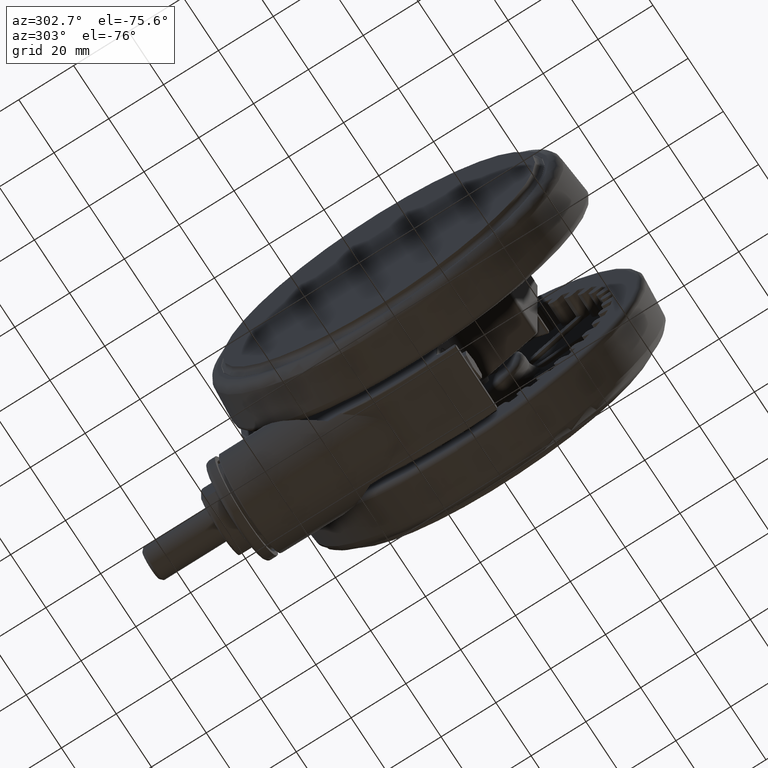
[diagram: clean part render]
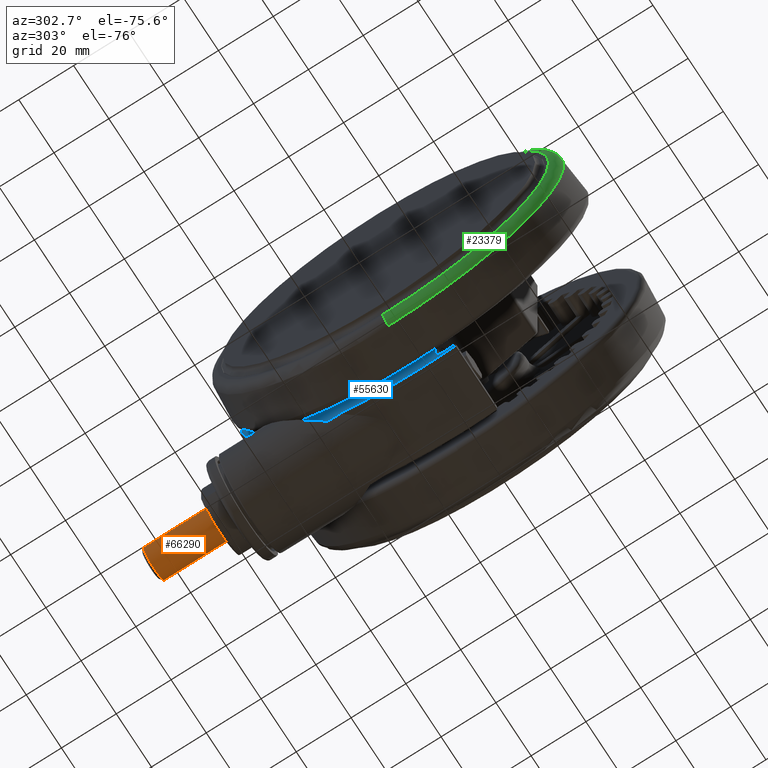
[diagram: same view with three faces highlighted in distinct colors, each labeled with its STEP entity id]
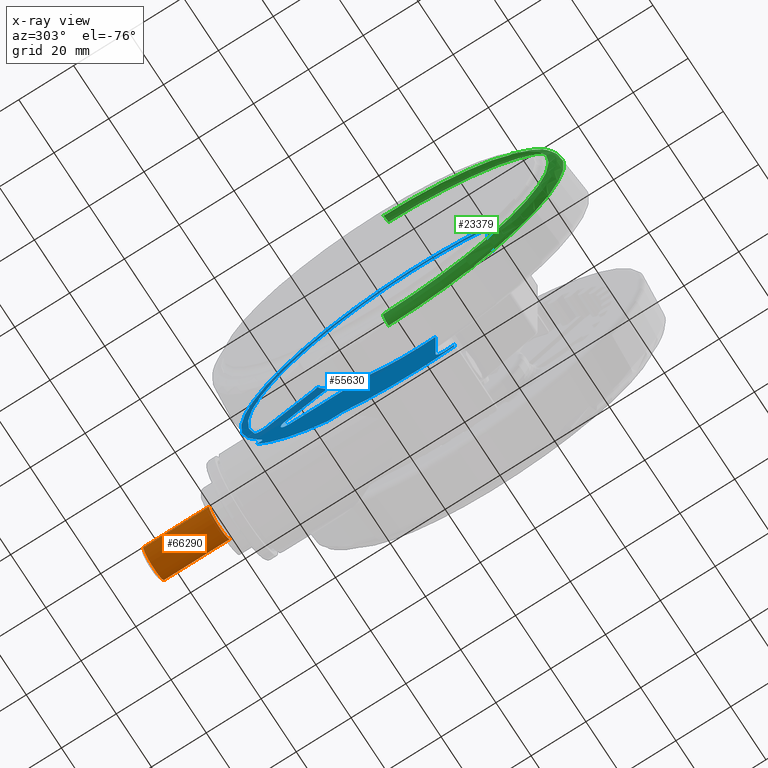
[diagram: x-ray of the same camera — body ghosted, the three highlighted faces saturated]
A machine part, auxiliary view with three faces highlighted in distinct colors.
The next image is the same camera in x-ray (body ghosted, the three faces saturated) — at least one of them is partly hidden behind the body in this view.
Their STEP definitions:

[orange] entity #66290 — the highlighted cylindrical surface (edge-blend (fillet) strip) has radius 6 mm, axis along (0, 1, 0).
#1411 = VERTEX_POINT ( 'NONE', #39515 ) ;
#5140 = EDGE_CURVE ( 'NONE', #1411, #66949, #65470, .T. ) ;
#6776 = DIRECTION ( 'NONE',  ( -0.05055745222233924000, -0.9987211542892170400, 0.0000000000000000000 ) ) ;
#7513 = EDGE_CURVE ( 'NONE', #11951, #13648, #17286, .T. ) ;
#9935 = CIRCLE ( 'NONE', #25752, 5.999999999999998200 ) ;
#10554 = CARTESIAN_POINT ( 'NONE',  ( 48.98704812080191600, 77.62260699313206700, -34.10000000000001600 ) ) ;
#11951 = VERTEX_POINT ( 'NONE', #47339 ) ;
#12126 = FACE_OUTER_BOUND ( 'NONE', #50219, .T. ) ;
#12871 = DIRECTION ( 'NONE',  ( 0.05055745222233924000, 0.9987211542892169300, -0.0000000000000000000 ) ) ;
#13588 = ORIENTED_EDGE ( 'NONE', *, *, #22470, .F. ) ;
#13648 = VERTEX_POINT ( 'NONE', #46284 ) ;
#16232 = DIRECTION ( 'NONE',  ( 0.05055745222233924000, 0.9987211542892170400, -0.0000000000000000000 ) ) ;
#16886 = CARTESIAN_POINT ( 'NONE',  ( 50.20042697413806100, 101.5919146960733000, -28.10000000000001600 ) ) ;
#17286 = LINE ( 'NONE', #29681, #30573 ) ;
#22470 = EDGE_CURVE ( 'NONE', #11951, #1411, #56983, .T. ) ;
#25752 = AXIS2_PLACEMENT_3D ( 'NONE', #40743, #6776, #46432 ) ;
#26553 = DIRECTION ( 'NONE',  ( -0.05055745222233924000, -0.9987211542892170400, 0.0000000000000000000 ) ) ;
#29681 = CARTESIAN_POINT ( 'NONE',  ( 48.98704812080191600, 77.62260699313206700, -40.10000000000000900 ) ) ;
#30573 = VECTOR ( 'NONE', #12871, 1000.000000000000100 ) ;
#30588 = CARTESIAN_POINT ( 'NONE',  ( 48.98704812080191600, 77.62260699313206700, -28.10000000000001600 ) ) ;
#34851 = ORIENTED_EDGE ( 'NONE', *, *, #7513, .T. ) ;
#35085 = AXIS2_PLACEMENT_3D ( 'NONE', #60536, #26553, #66233 ) ;
#38893 = VECTOR ( 'NONE', #70261, 1000.000000000000100 ) ;
#39515 = CARTESIAN_POINT ( 'NONE',  ( 48.98704812080191600, 77.62260699313206700, -28.10000000000001600 ) ) ;
#40743 = CARTESIAN_POINT ( 'NONE',  ( 50.20042697413806100, 101.5919146960733000, -34.10000000000001600 ) ) ;
#43579 = AXIS2_PLACEMENT_3D ( 'NONE', #10554, #16232, #55914 ) ;
#46284 = CARTESIAN_POINT ( 'NONE',  ( 50.20042697413806100, 101.5919146960733000, -40.10000000000000900 ) ) ;
#46432 = DIRECTION ( 'NONE',  ( 0.0000000000000000000, 0.0000000000000000000, -1.000000000000000000 ) ) ;
#47339 = CARTESIAN_POINT ( 'NONE',  ( 48.98704812080191600, 77.62260699313206700, -40.10000000000000900 ) ) ;
#50219 = EDGE_LOOP ( 'NONE', ( #13588, #34851, #56221, #57722 ) ) ;
#55576 = CYLINDRICAL_SURFACE ( 'NONE', #43579, 5.999999999999998200 ) ;
#55914 = DIRECTION ( 'NONE',  ( 0.0000000000000000000, 0.0000000000000000000, 1.000000000000000000 ) ) ;
#56221 = ORIENTED_EDGE ( 'NONE', *, *, #69925, .T. ) ;
#56983 = CIRCLE ( 'NONE', #35085, 5.999999999999998200 ) ;
#57722 = ORIENTED_EDGE ( 'NONE', *, *, #5140, .F. ) ;
#60536 = CARTESIAN_POINT ( 'NONE',  ( 48.98704812080191600, 77.62260699313206700, -34.10000000000001600 ) ) ;
#65470 = LINE ( 'NONE', #30588, #38893 ) ;
#66233 = DIRECTION ( 'NONE',  ( 0.0000000000000000000, 0.0000000000000000000, -1.000000000000000000 ) ) ;
#66290 = ADVANCED_FACE ( 'NONE', ( #12126 ), #55576, .T. ) ;
#66949 = VERTEX_POINT ( 'NONE', #16886 ) ;
#69925 = EDGE_CURVE ( 'NONE', #13648, #66949, #9935, .T. ) ;
#70261 = DIRECTION ( 'NONE',  ( 0.05055745222233924000, 0.9987211542892169300, -0.0000000000000000000 ) ) ;

[blue] entity #55630 — the highlighted planar face has unit normal (1, 0, 0).
#347 = CARTESIAN_POINT ( 'NONE',  ( 33.51595094455828400, 55.29808019779855500, -46.09999999999998700 ) ) ;
#589 = CARTESIAN_POINT ( 'NONE',  ( 34.65925647378355700, 55.49810765025986800, -46.10000000000000100 ) ) ;
#643 = DIRECTION ( 'NONE',  ( 0.0000000000000000000, 0.0000000000000000000, 1.000000000000000000 ) ) ;
#836 = CARTESIAN_POINT ( 'NONE',  ( 60.31797485852848000, -16.37045842259561800, -46.10000000000001600 ) ) ;
#1041 = DIRECTION ( 'NONE',  ( -0.0000000000000000000, -0.0000000000000000000, -1.000000000000000000 ) ) ;
#1085 = CARTESIAN_POINT ( 'NONE',  ( 30.64758720681064100, 56.75362412571225700, -46.10000000000001600 ) ) ;
#1138 = CARTESIAN_POINT ( 'NONE',  ( 0.0000000000000000000, 0.0000000000000000000, -46.10000000000001600 ) ) ;
#1403 = CARTESIAN_POINT ( 'NONE',  ( 37.45204328584563300, -1.895904458337730900, -46.10000000000001600 ) ) ;
#1537 = ORIENTED_EDGE ( 'NONE', *, *, #31021, .F. ) ;
#1570 = DIRECTION ( 'NONE',  ( -0.9987211542892169300, 0.05055745222233937200, -0.0000000000000000000 ) ) ;
#2556 = DIRECTION ( 'NONE',  ( 0.0000000000000000000, 0.0000000000000000000, 1.000000000000000000 ) ) ;
#3178 = DIRECTION ( 'NONE',  ( -0.0000000000000000000, -0.0000000000000000000, -1.000000000000000000 ) ) ;
#3325 = AXIS2_PLACEMENT_3D ( 'NONE', #72880, #38936, #5013 ) ;
#3606 = CARTESIAN_POINT ( 'NONE',  ( 29.94533332071498700, 22.57270502866851200, -46.10000000000001600 ) ) ;
#3657 = AXIS2_PLACEMENT_3D ( 'NONE', #25933, #65591, #31638 ) ;
#3766 = DIRECTION ( 'NONE',  ( 0.05055745222233949700, 0.9987211542892169300, 0.0000000000000000000 ) ) ;
#4125 = CARTESIAN_POINT ( 'NONE',  ( 34.66436689370962700, 55.59908045342798700, -46.10000000000001600 ) ) ;
#4260 = EDGE_CURVE ( 'NONE', #41887, #12539, #50604, .T. ) ;
#4665 = CIRCLE ( 'NONE', #65420, 3.499999999999997800 ) ;
#4832 = EDGE_LOOP ( 'NONE', ( #10673, #38430, #43316, #12071, #6911, #33844, #32757, #31905, #64059, #39299, #1537, #27477, #63760, #38965, #6835, #43246, #28815, #63596, #65700, #61091, #46194, #7256, #10871, #44860, #23507, #50428, #38896, #12722, #13035, #28745, #36929, #52384 ) ) ;
#4910 = DIRECTION ( 'NONE',  ( 0.9987211542892169300, -0.05055745222233949700, 0.0000000000000000000 ) ) ;
#5013 = DIRECTION ( 'NONE',  ( 0.9987211542892169300, -0.05055745222233949000, 0.0000000000000000000 ) ) ;
#5377 = EDGE_CURVE ( 'NONE', #61057, #23327, #51307, .T. ) ;
#5521 = DIRECTION ( 'NONE',  ( 0.0000000000000000000, 0.0000000000000000000, 1.000000000000000000 ) ) ;
#5614 = EDGE_CURVE ( 'NONE', #27569, #64696, #37062, .T. ) ;
#5704 = DIRECTION ( 'NONE',  ( -0.9987211542892169300, 0.05055745222233949700, 0.0000000000000000000 ) ) ;
#5719 = EDGE_CURVE ( 'NONE', #69908, #31098, #73390, .T. ) ;
#6004 = CARTESIAN_POINT ( 'NONE',  ( 33.97804829239861800, 55.10111271422160000, -46.10000000000008700 ) ) ;
#6789 = DIRECTION ( 'NONE',  ( 0.9987211542892169300, -0.05055745222233949700, 0.0000000000000000000 ) ) ;
#6815 = DIRECTION ( 'NONE',  ( -0.5135107618322831700, -0.8580831530116577200, 0.0000000000000000000 ) ) ;
#6835 = ORIENTED_EDGE ( 'NONE', *, *, #9533, .T. ) ;
#6911 = ORIENTED_EDGE ( 'NONE', *, *, #46186, .T. ) ;
#7256 = ORIENTED_EDGE ( 'NONE', *, *, #56741, .T. ) ;
#7736 = VERTEX_POINT ( 'NONE', #20967 ) ;
#8839 = CARTESIAN_POINT ( 'NONE',  ( 0.0000000000000000000, 0.0000000000000000000, -46.10000000000001600 ) ) ;
#8988 = EDGE_CURVE ( 'NONE', #12539, #30166, #44682, .T. ) ;
#9115 = CARTESIAN_POINT ( 'NONE',  ( 59.72421825664727600, 24.35708836524514400, -46.10000000000001600 ) ) ;
#9350 = CARTESIAN_POINT ( 'NONE',  ( 35.54201480121026400, -8.307537774247636600, -46.10000000000001600 ) ) ;
#9533 = EDGE_CURVE ( 'NONE', #7736, #42382, #25943, .T. ) ;
#9575 = AXIS2_PLACEMENT_3D ( 'NONE', #45835, #11900, #51571 ) ;
#9717 = CIRCLE ( 'NONE', #27236, 64.50000000000000000 ) ;
#9877 = CARTESIAN_POINT ( 'NONE',  ( 36.55651638203040200, -8.358894066223154300, -46.10000000000001600 ) ) ;
#10416 = AXIS2_PLACEMENT_3D ( 'NONE', #72781, #38837, #4910 ) ;
#10673 = ORIENTED_EDGE ( 'NONE', *, *, #30717, .T. ) ;
#10871 = ORIENTED_EDGE ( 'NONE', *, *, #44620, .T. ) ;
#11556 = CARTESIAN_POINT ( 'NONE',  ( -34.16714021686056700, -20.79919540274063300, -46.10000000000001600 ) ) ;
#11720 = CARTESIAN_POINT ( 'NONE',  ( 34.21939798588539400, 55.02952015150120200, -46.10000000000003000 ) ) ;
#11847 = EDGE_CURVE ( 'NONE', #43187, #27569, #28059, .T. ) ;
#11900 = DIRECTION ( 'NONE',  ( 0.0000000000000000000, 0.0000000000000000000, 1.000000000000000000 ) ) ;
#12071 = ORIENTED_EDGE ( 'NONE', *, *, #54898, .T. ) ;
#12276 = CARTESIAN_POINT ( 'NONE',  ( -7.916026514659930200, 4.737262107944387100, -46.10000000000001600 ) ) ;
#12389 = CARTESIAN_POINT ( 'NONE',  ( 0.0000000000000000000, 0.0000000000000000000, -46.10000000000001600 ) ) ;
#12539 = VERTEX_POINT ( 'NONE', #61066 ) ;
#12722 = ORIENTED_EDGE ( 'NONE', *, *, #11847, .T. ) ;
#13035 = ORIENTED_EDGE ( 'NONE', *, *, #5614, .T. ) ;
#13252 = CARTESIAN_POINT ( 'NONE',  ( 61.06195632612809700, -13.10389479921933800, -46.10000000000001600 ) ) ;
#13402 = DIRECTION ( 'NONE',  ( 0.0000000000000000000, 0.0000000000000000000, 1.000000000000000000 ) ) ;
#13952 = VERTEX_POINT ( 'NONE', #4125 ) ;
#14334 = EDGE_CURVE ( 'NONE', #26333, #15521, #30513, .T. ) ;
#14515 = DIRECTION ( 'NONE',  ( 0.9987211542892169300, -0.05055745222233949000, 0.0000000000000000000 ) ) ;
#15044 = VERTEX_POINT ( 'NONE', #23946 ) ;
#15122 = CARTESIAN_POINT ( 'NONE',  ( 10.05629528079595800, 36.12645741316798400, -46.10000000000001600 ) ) ;
#15211 = CIRCLE ( 'NONE', #43667, 2.999999999999999600 ) ;
#15226 = AXIS2_PLACEMENT_3D ( 'NONE', #63549, #29574, #69255 ) ;
#15430 = VERTEX_POINT ( 'NONE', #39775 ) ;
#15432 = VERTEX_POINT ( 'NONE', #34059 ) ;
#15488 = EDGE_CURVE ( 'NONE', #53626, #19756, #21498, .T. ) ;
#15521 = VERTEX_POINT ( 'NONE', #1403 ) ;
#15866 = CIRCLE ( 'NONE', #69336, 3.499999999999997800 ) ;
#16410 = DIRECTION ( 'NONE',  ( 0.0000000000000000000, 0.0000000000000000000, 1.000000000000000000 ) ) ;
#16578 = LINE ( 'NONE', #9350, #46756 ) ;
#16586 = VERTEX_POINT ( 'NONE', #21681 ) ;
#16675 = CIRCLE ( 'NONE', #22309, 0.4999999999999987800 ) ;
#16743 = EDGE_CURVE ( 'NONE', #25891, #15430, #25736, .T. ) ;
#16800 = EDGE_CURVE ( 'NONE', #64696, #69908, #63899, .T. ) ;
#16894 = VECTOR ( 'NONE', #22919, 1000.000000000000100 ) ;
#17247 = DIRECTION ( 'NONE',  ( 0.9987211542892170400, -0.05055745222233913600, 0.0000000000000000000 ) ) ;
#17393 = CARTESIAN_POINT ( 'NONE',  ( 34.37017640953696000, 55.01755876338918200, -46.10000000000008700 ) ) ;
#17989 = CARTESIAN_POINT ( 'NONE',  ( -55.60906158615221500, -19.71375838107803000, -46.10000000000001600 ) ) ;
#18068 = DIRECTION ( 'NONE',  ( 0.9987211542892170400, -0.05055745222233950400, 0.0000000000000000000 ) ) ;
#19175 = CIRCLE ( 'NONE', #70868, 37.50000000000000000 ) ;
#19631 = CARTESIAN_POINT ( 'NONE',  ( 64.41751445165449800, -3.260955668340897800, -46.10000000000001600 ) ) ;
#19756 = VERTEX_POINT ( 'NONE', #44641 ) ;
#19820 = CARTESIAN_POINT ( 'NONE',  ( 19.14932057580867300, 55.80594521630206400, -46.10000000000001600 ) ) ;
#20003 = DIRECTION ( 'NONE',  ( 0.0000000000000000000, 0.0000000000000000000, 1.000000000000000000 ) ) ;
#20414 = AXIS2_PLACEMENT_3D ( 'NONE', #61520, #27546, #67226 ) ;
#20967 = CARTESIAN_POINT ( 'NONE',  ( -58.43664098883801500, -20.71615287503112800, -46.10000000000001600 ) ) ;
#21076 = AXIS2_PLACEMENT_3D ( 'NONE', #53985, #20003, #59676 ) ;
#21479 = B_SPLINE_CURVE_WITH_KNOTS ( 'NONE', 3,
 ( #22848, #51147, #28525, #68207, #34231, #347, #39946, #6004, #45656, #11720, #51387, #17393, #57080, #23087, #62733, #28767, #68448, #34488, #589, #40202 ),
 .UNSPECIFIED., .F., .F.,
 ( 4, 2, 2, 2, 2, 2, 2, 2, 2, 4 ),
 ( 0.0000000000000000000, 0.002412417624455725900, 0.003015522030569659300, 0.003618626436683592700, 0.003920178639740563300, 0.004070954741269051200, 0.004221730842797539200, 0.004372506944326027100, 0.004523283045854514100, 0.004824835248911489900 ),
 .UNSPECIFIED. ) ;
#21498 = CIRCLE ( 'NONE', #15226, 67.00000000000000000 ) ;
#21594 = AXIS2_PLACEMENT_3D ( 'NONE', #12389, #52055, #18068 ) ;
#21681 = CARTESIAN_POINT ( 'NONE',  ( -61.92071156593144800, 3.134562037785048700, -46.10000000000001600 ) ) ;
#22309 = AXIS2_PLACEMENT_3D ( 'NONE', #37094, #3178, #42801 ) ;
#22848 = CARTESIAN_POINT ( 'NONE',  ( 30.64758720681064100, 56.75362412571225700, -46.10000000000001600 ) ) ;
#22919 = DIRECTION ( 'NONE',  ( 0.05055745222233949700, 0.9987211542892169300, -0.0000000000000000000 ) ) ;
#22947 = EDGE_CURVE ( 'NONE', #29278, #28611, #15211, .T. ) ;
#23087 = CARTESIAN_POINT ( 'NONE',  ( 34.51033384425105100, 55.07438368592178800, -46.09999999999999400 ) ) ;
#23146 = CARTESIAN_POINT ( 'NONE',  ( 20.68452808497702800, 34.02906120299686400, -46.10000000000001600 ) ) ;
#23327 = VERTEX_POINT ( 'NONE', #46054 ) ;
#23412 = CARTESIAN_POINT ( 'NONE',  ( 0.0000000000000000000, 0.0000000000000000000, -46.10000000000001600 ) ) ;
#23507 = ORIENTED_EDGE ( 'NONE', *, *, #15488, .F. ) ;
#23689 = DIRECTION ( 'NONE',  ( 0.9987211542892170400, -0.05055745222233913600, 0.0000000000000000000 ) ) ;
#23926 = EDGE_CURVE ( 'NONE', #15430, #41887, #48815, .T. ) ;
#23946 = CARTESIAN_POINT ( 'NONE',  ( 11.64154443834423500, 37.41821720365116000, -46.10000000000001600 ) ) ;
#24088 = CARTESIAN_POINT ( 'NONE',  ( -0.6724141145571136400, -13.28299135204658500, -46.10000000000001600 ) ) ;
#24319 = CIRCLE ( 'NONE', #27036, 62.00000000000000700 ) ;
#25504 = DIRECTION ( 'NONE',  ( 0.9987211542892168200, -0.05055745222234028800, 0.0000000000000000000 ) ) ;
#25728 = CIRCLE ( 'NONE', #21076, 3.000000000000001300 ) ;
#25736 = CIRCLE ( 'NONE', #46175, 3.499999999999997800 ) ;
#25891 = VERTEX_POINT ( 'NONE', #56297 ) ;
#25933 = CARTESIAN_POINT ( 'NONE',  ( 0.0000000000000000000, 0.0000000000000000000, -46.10000000000001600 ) ) ;
#25943 = CIRCLE ( 'NONE', #67543, 2.999999999999999100 ) ;
#25947 = AXIS2_PLACEMENT_3D ( 'NONE', #65321, #31359, #71055 ) ;
#26238 = CARTESIAN_POINT ( 'NONE',  ( 34.75579020374034700, 57.40496684886175400, -46.10000000000001600 ) ) ;
#26333 = VERTEX_POINT ( 'NONE', #9877 ) ;
#26982 = CARTESIAN_POINT ( 'NONE',  ( -59.56876827585880800, -24.73483062600266500, -46.10000000000001600 ) ) ;
#27036 = AXIS2_PLACEMENT_3D ( 'NONE', #23412, #63053, #29088 ) ;
#27236 = AXIS2_PLACEMENT_3D ( 'NONE', #34951, #1041, #40655 ) ;
#27477 = ORIENTED_EDGE ( 'NONE', *, *, #22947, .T. ) ;
#27546 = DIRECTION ( 'NONE',  ( 0.0000000000000000000, 0.0000000000000000000, 1.000000000000000000 ) ) ;
#27569 = VERTEX_POINT ( 'NONE', #68893 ) ;
#28059 = CIRCLE ( 'NONE', #21594, 64.50000000000000000 ) ;
#28135 = AXIS2_PLACEMENT_3D ( 'NONE', #36478, #2556, #42162 ) ;
#28513 = CARTESIAN_POINT ( 'NONE',  ( -26.32864730004372300, -26.70303973988544000, -46.10000000000001600 ) ) ;
#28525 = CARTESIAN_POINT ( 'NONE',  ( 32.07151558788977000, 56.00572191963140500, -46.10000000000001600 ) ) ;
#28611 = VERTEX_POINT ( 'NONE', #69984 ) ;
#28745 = ORIENTED_EDGE ( 'NONE', *, *, #16800, .T. ) ;
#28767 = CARTESIAN_POINT ( 'NONE',  ( 34.59403324387595500, 55.20241214907555600, -46.09999999999995200 ) ) ;
#28815 = ORIENTED_EDGE ( 'NONE', *, *, #48224, .T. ) ;
#29088 = DIRECTION ( 'NONE',  ( 0.9987211542892171500, -0.05055745222233594400, 0.0000000000000000000 ) ) ;
#29278 = VERTEX_POINT ( 'NONE', #39063 ) ;
#29574 = DIRECTION ( 'NONE',  ( 0.0000000000000000000, 0.0000000000000000000, 1.000000000000000000 ) ) ;
#29656 = VERTEX_POINT ( 'NONE', #3606 ) ;
#30160 = EDGE_CURVE ( 'NONE', #13952, #19756, #46826, .T. ) ;
#30166 = VERTEX_POINT ( 'NONE', #15122 ) ;
#30513 = CIRCLE ( 'NONE', #3325, 37.50000000000000000 ) ;
#30704 = VERTEX_POINT ( 'NONE', #9115 ) ;
#30717 = EDGE_CURVE ( 'NONE', #38954, #26333, #16578, .T. ) ;
#31021 = EDGE_CURVE ( 'NONE', #29278, #15044, #57354, .T. ) ;
#31098 = VERTEX_POINT ( 'NONE', #13252 ) ;
#31359 = DIRECTION ( 'NONE',  ( -0.0000000000000000000, -0.0000000000000000000, -1.000000000000000000 ) ) ;
#31398 = CIRCLE ( 'NONE', #58895, 64.50000000000000000 ) ;
#31549 = VERTEX_POINT ( 'NONE', #26982 ) ;
#31638 = DIRECTION ( 'NONE',  ( 0.9987211542892169300, -0.05055745222233949000, 0.0000000000000000000 ) ) ;
#31836 = CIRCLE ( 'NONE', #58680, 2.999999999999999100 ) ;
#31905 = ORIENTED_EDGE ( 'NONE', *, *, #4260, .T. ) ;
#32552 = CARTESIAN_POINT ( 'NONE',  ( 0.0000000000000000000, 0.0000000000000000000, -46.10000000000001600 ) ) ;
#32757 = ORIENTED_EDGE ( 'NONE', *, *, #23926, .T. ) ;
#33844 = ORIENTED_EDGE ( 'NONE', *, *, #16743, .T. ) ;
#34059 = CARTESIAN_POINT ( 'NONE',  ( -34.31881257352758800, -23.79535886560828200, -46.10000000000001600 ) ) ;
#34231 = CARTESIAN_POINT ( 'NONE',  ( 33.15272065478809100, 55.47074417556912400, -46.09999999999998700 ) ) ;
#34488 = CARTESIAN_POINT ( 'NONE',  ( 34.64884455095445800, 55.39677608982368900, -46.10000000000006500 ) ) ;
#34530 = CARTESIAN_POINT ( 'NONE',  ( 31.31386694237263400, 44.97499850161797500, -46.10000000000001600 ) ) ;
#34780 = CARTESIAN_POINT ( 'NONE',  ( 60.98139013359731600, -13.69379630978934300, -46.10000000000001600 ) ) ;
#34901 = CARTESIAN_POINT ( 'NONE',  ( 34.80939098238488300, 44.79804741883958700, -46.10000000000001600 ) ) ;
#34951 = CARTESIAN_POINT ( 'NONE',  ( 0.0000000000000000000, 0.0000000000000000000, -46.10000000000001600 ) ) ;
#36018 = AXIS2_PLACEMENT_3D ( 'NONE', #11556, #51229, #17247 ) ;
#36205 = VECTOR ( 'NONE', #38485, 1000.000000000000100 ) ;
#36478 = CARTESIAN_POINT ( 'NONE',  ( 57.56643228611584100, -12.92694371644115000, -46.10000000000001600 ) ) ;
#36929 = ORIENTED_EDGE ( 'NONE', *, *, #5719, .T. ) ;
#37062 = LINE ( 'NONE', #24088, #63655 ) ;
#37094 = CARTESIAN_POINT ( 'NONE',  ( -59.10699487837147400, -24.54308775293288000, -46.10000000000001600 ) ) ;
#38284 = DIRECTION ( 'NONE',  ( 0.9987211542892170400, -0.05055745222233772700, 0.0000000000000000000 ) ) ;
#38430 = ORIENTED_EDGE ( 'NONE', *, *, #14334, .T. ) ;
#38485 = DIRECTION ( 'NONE',  ( -0.9987211542892169300, 0.05055745222233942700, -0.0000000000000000000 ) ) ;
#38837 = DIRECTION ( 'NONE',  ( 0.0000000000000000000, 0.0000000000000000000, 1.000000000000000000 ) ) ;
#38896 = ORIENTED_EDGE ( 'NONE', *, *, #60400, .T. ) ;
#38936 = DIRECTION ( 'NONE',  ( 0.0000000000000000000, 0.0000000000000000000, 1.000000000000000000 ) ) ;
#38954 = VERTEX_POINT ( 'NONE', #71832 ) ;
#38965 = ORIENTED_EDGE ( 'NONE', *, *, #60520, .F. ) ;
#39063 = CARTESIAN_POINT ( 'NONE',  ( 21.72357003484367200, 54.26541293080527600, -46.10000000000001600 ) ) ;
#39299 = ORIENTED_EDGE ( 'NONE', *, *, #63782, .T. ) ;
#39444 = CARTESIAN_POINT ( 'NONE',  ( 30.35576898921556900, 26.04855637215578700, -46.10000000000001600 ) ) ;
#39642 = CARTESIAN_POINT ( 'NONE',  ( -1.289215031669657100, -25.46738943437503300, -46.10000000000001600 ) ) ;
#39775 = CARTESIAN_POINT ( 'NONE',  ( 28.31057590683171200, 46.77228616803084500, -46.10000000000001600 ) ) ;
#39835 = CARTESIAN_POINT ( 'NONE',  ( -55.76073394281923600, -22.70992184394568300, -46.10000000000001600 ) ) ;
#39946 = CARTESIAN_POINT ( 'NONE',  ( 33.69809807206886600, 55.21299326556969300, -46.10000000000010100 ) ) ;
#40202 = CARTESIAN_POINT ( 'NONE',  ( 34.66436689370962700, 55.59908045342798700, -46.10000000000001600 ) ) ;
#40250 = DIRECTION ( 'NONE',  ( 0.9987211542892169300, -0.05055745222233964900, 0.0000000000000000000 ) ) ;
#40655 = DIRECTION ( 'NONE',  ( 0.9987211542892170400, -0.05055745222233772700, 0.0000000000000000000 ) ) ;
#40751 = DIRECTION ( 'NONE',  ( 0.0000000000000000000, 0.0000000000000000000, 1.000000000000000000 ) ) ;
#41570 = LINE ( 'NONE', #39642, #69937 ) ;
#41887 = VERTEX_POINT ( 'NONE', #63709 ) ;
#41945 = EDGE_CURVE ( 'NONE', #31098, #38954, #15866, .T. ) ;
#42162 = DIRECTION ( 'NONE',  ( 0.9987211542892169300, -0.05055745222233964900, 0.0000000000000000000 ) ) ;
#42264 = VECTOR ( 'NONE', #6815, 1000.000000000000100 ) ;
#42382 = VERTEX_POINT ( 'NONE', #39835 ) ;
#42801 = DIRECTION ( 'NONE',  ( 0.9987211542892168200, -0.05055745222234271600, 0.0000000000000000000 ) ) ;
#43187 = VERTEX_POINT ( 'NONE', #19631 ) ;
#43246 = ORIENTED_EDGE ( 'NONE', *, *, #65075, .F. ) ;
#43256 = VERTEX_POINT ( 'NONE', #61027 ) ;
#43301 = DIRECTION ( 'NONE',  ( -0.9987211542892169300, 0.05055745222233949700, 0.0000000000000000000 ) ) ;
#43316 = ORIENTED_EDGE ( 'NONE', *, *, #50795, .T. ) ;
#43667 = AXIS2_PLACEMENT_3D ( 'NONE', #19820, #59490, #25504 ) ;
#44620 = EDGE_CURVE ( 'NONE', #62699, #13952, #21479, .T. ) ;
#44641 = CARTESIAN_POINT ( 'NONE',  ( 34.74966831826672100, 57.28403400399144400, -46.10000000000001600 ) ) ;
#44682 = CIRCLE ( 'NONE', #9575, 37.50000000000000000 ) ;
#44860 = ORIENTED_EDGE ( 'NONE', *, *, #30160, .T. ) ;
#45148 = DIRECTION ( 'NONE',  ( 0.9987211542892169300, -0.05055745222233964900, 0.0000000000000000000 ) ) ;
#45656 = CARTESIAN_POINT ( 'NONE',  ( 34.07293361827797900, 55.06576064178454300, -46.10000000000003700 ) ) ;
#45710 = DIRECTION ( 'NONE',  ( -0.5135107618322831700, -0.8580831530116577200, 0.0000000000000000000 ) ) ;
#45835 = CARTESIAN_POINT ( 'NONE',  ( 0.0000000000000000000, 0.0000000000000000000, -46.10000000000001600 ) ) ;
#46054 = CARTESIAN_POINT ( 'NONE',  ( -59.13227360448264800, -25.04244833007749100, -46.10000000000001600 ) ) ;
#46067 = DIRECTION ( 'NONE',  ( 0.05055745222233924000, 0.9987211542892169300, 0.0000000000000000000 ) ) ;
#46127 = CIRCLE ( 'NONE', #36018, 2.999999999999999100 ) ;
#46175 = AXIS2_PLACEMENT_3D ( 'NONE', #34530, #643, #40250 ) ;
#46186 = EDGE_CURVE ( 'NONE', #43256, #25891, #64184, .T. ) ;
#46194 = ORIENTED_EDGE ( 'NONE', *, *, #49556, .T. ) ;
#46756 = VECTOR ( 'NONE', #43301, 1000.000000000000100 ) ;
#46826 = LINE ( 'NONE', #26238, #60098 ) ;
#47033 = VECTOR ( 'NONE', #45710, 1000.000000000000100 ) ;
#47373 = CARTESIAN_POINT ( 'NONE',  ( 57.56643228611584100, -12.92694371644115000, -46.10000000000001600 ) ) ;
#48224 = EDGE_CURVE ( 'NONE', #15432, #56870, #46127, .T. ) ;
#48508 = DIRECTION ( 'NONE',  ( 0.0000000000000000000, 0.0000000000000000000, 1.000000000000000000 ) ) ;
#48815 = LINE ( 'NONE', #23146, #47033 ) ;
#49556 = EDGE_CURVE ( 'NONE', #23327, #31549, #16675, .T. ) ;
#50418 = CARTESIAN_POINT ( 'NONE',  ( -34.16714021686056700, -20.79919540274063300, -46.10000000000001600 ) ) ;
#50428 = ORIENTED_EDGE ( 'NONE', *, *, #70872, .F. ) ;
#50604 = CIRCLE ( 'NONE', #20414, 3.500000000000001300 ) ;
#50795 = EDGE_CURVE ( 'NONE', #15521, #29656, #19175, .T. ) ;
#51147 = CARTESIAN_POINT ( 'NONE',  ( 31.35532966882954000, 56.37139624504437300, -46.10000000000000100 ) ) ;
#51229 = DIRECTION ( 'NONE',  ( 0.0000000000000000000, 0.0000000000000000000, 1.000000000000000000 ) ) ;
#51307 = LINE ( 'NONE', #66482, #36205 ) ;
#51387 = CARTESIAN_POINT ( 'NONE',  ( 34.26942598900471600, 55.02015832719371200, -46.10000000000008700 ) ) ;
#51571 = DIRECTION ( 'NONE',  ( 0.9987211542892169300, -0.05055745222233949000, 0.0000000000000000000 ) ) ;
#52055 = DIRECTION ( 'NONE',  ( -0.0000000000000000000, -0.0000000000000000000, -1.000000000000000000 ) ) ;
#52384 = ORIENTED_EDGE ( 'NONE', *, *, #41945, .T. ) ;
#53058 = DIRECTION ( 'NONE',  ( 0.9987211542892169300, -0.05055745222233964900, 0.0000000000000000000 ) ) ;
#53294 = CARTESIAN_POINT ( 'NONE',  ( 60.00051325005273400, 29.81507017818748700, -46.10000000000001600 ) ) ;
#53626 = VERTEX_POINT ( 'NONE', #53294 ) ;
#53946 = CIRCLE ( 'NONE', #3657, 37.50000000000000000 ) ;
#53985 = CARTESIAN_POINT ( 'NONE',  ( 9.067294979309258100, 38.95874948914802600, -46.10000000000001600 ) ) ;
#54898 = EDGE_CURVE ( 'NONE', #29656, #43256, #4665, .T. ) ;
#55630 = ADVANCED_FACE ( 'NONE', ( #63970 ), #67075, .F. ) ;
#56103 = DIRECTION ( 'NONE',  ( 0.9987211542892170400, -0.05055745222233913600, 0.0000000000000000000 ) ) ;
#56297 = CARTESIAN_POINT ( 'NONE',  ( 34.80939098238488300, 44.79804741883958700, -46.10000000000001600 ) ) ;
#56741 = EDGE_CURVE ( 'NONE', #31549, #62699, #9717, .T. ) ;
#56870 = VERTEX_POINT ( 'NONE', #70384 ) ;
#57080 = CARTESIAN_POINT ( 'NONE',  ( 34.42176335993291800, 55.02537473698449600, -46.09999999999999400 ) ) ;
#57354 = LINE ( 'NONE', #12276, #42264 ) ;
#57660 = DIRECTION ( 'NONE',  ( 0.0000000000000000000, 0.0000000000000000000, 1.000000000000000000 ) ) ;
#58680 = AXIS2_PLACEMENT_3D ( 'NONE', #50418, #16410, #56103 ) ;
#58895 = AXIS2_PLACEMENT_3D ( 'NONE', #32552, #72253, #38284 ) ;
#59490 = DIRECTION ( 'NONE',  ( 0.0000000000000000000, 0.0000000000000000000, 1.000000000000000000 ) ) ;
#59676 = DIRECTION ( 'NONE',  ( 0.9987211542892168200, -0.05055745222234025300, 0.0000000000000000000 ) ) ;
#60098 = VECTOR ( 'NONE', #3766, 1000.000000000000100 ) ;
#60400 = EDGE_CURVE ( 'NONE', #30704, #43187, #31398, .T. ) ;
#60520 = EDGE_CURVE ( 'NONE', #7736, #16586, #24319, .T. ) ;
#61027 = CARTESIAN_POINT ( 'NONE',  ( 33.85129302922782600, 25.87160528937759800, -46.10000000000001600 ) ) ;
#61057 = VERTEX_POINT ( 'NONE', #28513 ) ;
#61066 = CARTESIAN_POINT ( 'NONE',  ( 20.25276248188684700, 31.56066557999490000, -46.10000000000001600 ) ) ;
#61091 = ORIENTED_EDGE ( 'NONE', *, *, #5377, .T. ) ;
#61344 = AXIS2_PLACEMENT_3D ( 'NONE', #1138, #40751, #6789 ) ;
#61450 = CARTESIAN_POINT ( 'NONE',  ( -31.16761510216203100, -20.85257223566149400, -46.10000000000001600 ) ) ;
#61520 = CARTESIAN_POINT ( 'NONE',  ( 23.68781912051783700, 32.23177353658390100, -46.10000000000001600 ) ) ;
#62101 = LINE ( 'NONE', #62319, #16894 ) ;
#62319 = CARTESIAN_POINT ( 'NONE',  ( 61.83016649570262000, 65.95837489632062000, -46.10000000000001600 ) ) ;
#62699 = VERTEX_POINT ( 'NONE', #1085 ) ;
#62733 = CARTESIAN_POINT ( 'NONE',  ( 34.54463267430207900, 55.11440532569342600, -46.09999999999994500 ) ) ;
#63053 = DIRECTION ( 'NONE',  ( -0.0000000000000000000, -0.0000000000000000000, -1.000000000000000000 ) ) ;
#63549 = CARTESIAN_POINT ( 'NONE',  ( 0.0000000000000000000, 0.0000000000000000000, -46.10000000000001600 ) ) ;
#63596 = ORIENTED_EDGE ( 'NONE', *, *, #64542, .T. ) ;
#63655 = VECTOR ( 'NONE', #1570, 1000.000000000000100 ) ;
#63709 = CARTESIAN_POINT ( 'NONE',  ( 20.68452808497702800, 34.02906120299686400, -46.10000000000001600 ) ) ;
#63760 = ORIENTED_EDGE ( 'NONE', *, *, #66090, .F. ) ;
#63782 = EDGE_CURVE ( 'NONE', #30166, #15044, #25728, .T. ) ;
#63899 = CIRCLE ( 'NONE', #61344, 62.50000000000000700 ) ;
#63970 = FACE_OUTER_BOUND ( 'NONE', #4832, .T. ) ;
#64059 = ORIENTED_EDGE ( 'NONE', *, *, #8988, .T. ) ;
#64184 = LINE ( 'NONE', #34901, #65939 ) ;
#64542 = EDGE_CURVE ( 'NONE', #56870, #64984, #31836, .T. ) ;
#64696 = VERTEX_POINT ( 'NONE', #836 ) ;
#64984 = VERTEX_POINT ( 'NONE', #61450 ) ;
#65075 = EDGE_CURVE ( 'NONE', #15432, #42382, #41570, .T. ) ;
#65321 = CARTESIAN_POINT ( 'NONE',  ( 0.0000000000000000000, 0.0000000000000000000, -46.10000000000001600 ) ) ;
#65380 = EDGE_CURVE ( 'NONE', #64984, #61057, #53946, .T. ) ;
#65420 = AXIS2_PLACEMENT_3D ( 'NONE', #39444, #5521, #45148 ) ;
#65591 = DIRECTION ( 'NONE',  ( 0.0000000000000000000, 0.0000000000000000000, 1.000000000000000000 ) ) ;
#65700 = ORIENTED_EDGE ( 'NONE', *, *, #65380, .T. ) ;
#65939 = VECTOR ( 'NONE', #46067, 1000.000000000000100 ) ;
#66090 = EDGE_CURVE ( 'NONE', #16586, #28611, #71570, .T. ) ;
#66482 = CARTESIAN_POINT ( 'NONE',  ( -1.415608662225504400, -27.96419232009807800, -46.10000000000001600 ) ) ;
#67075 = PLANE ( 'NONE',  #10416 ) ;
#67226 = DIRECTION ( 'NONE',  ( 0.9987211542892169300, -0.05055745222233960100, 0.0000000000000000000 ) ) ;
#67543 = AXIS2_PLACEMENT_3D ( 'NONE', #17989, #57660, #23689 ) ;
#68207 = CARTESIAN_POINT ( 'NONE',  ( 32.97219647185270500, 55.55931127020752300, -46.10000000000001600 ) ) ;
#68448 = CARTESIAN_POINT ( 'NONE',  ( 34.61074905532068200, 55.25073286642486200, -46.10000000000007200 ) ) ;
#68893 = CARTESIAN_POINT ( 'NONE',  ( 62.36073834405451100, -16.47386758427951400, -46.10000000000001600 ) ) ;
#69255 = DIRECTION ( 'NONE',  ( 0.9987211542892170400, -0.05055745222233949700, 0.0000000000000000000 ) ) ;
#69336 = AXIS2_PLACEMENT_3D ( 'NONE', #47373, #13402, #53058 ) ;
#69908 = VERTEX_POINT ( 'NONE', #34780 ) ;
#69937 = VECTOR ( 'NONE', #5704, 1000.000000000000100 ) ;
#69984 = CARTESIAN_POINT ( 'NONE',  ( 20.12301484237522700, 58.64353565102936700, -46.10000000000001600 ) ) ;
#70384 = CARTESIAN_POINT ( 'NONE',  ( -31.17097675399292100, -20.95086775940765000, -46.10000000000001600 ) ) ;
#70868 = AXIS2_PLACEMENT_3D ( 'NONE', #8839, #48508, #14515 ) ;
#70872 = EDGE_CURVE ( 'NONE', #30704, #53626, #62101, .T. ) ;
#71055 = DIRECTION ( 'NONE',  ( 0.9987211542892169300, -0.05055745222233949700, 0.0000000000000000000 ) ) ;
#71570 = CIRCLE ( 'NONE', #25947, 62.00000000000000700 ) ;
#71832 = CARTESIAN_POINT ( 'NONE',  ( 57.74338336889403000, -9.431419676428888000, -46.10000000000001600 ) ) ;
#72253 = DIRECTION ( 'NONE',  ( -0.0000000000000000000, -0.0000000000000000000, -1.000000000000000000 ) ) ;
#72781 = CARTESIAN_POINT ( 'NONE',  ( 0.0000000000000000000, 0.0000000000000000000, -46.10000000000001600 ) ) ;
#72880 = CARTESIAN_POINT ( 'NONE',  ( 0.0000000000000000000, 0.0000000000000000000, -46.10000000000001600 ) ) ;
#73390 = CIRCLE ( 'NONE', #28135, 3.499999999999997800 ) ;

[green] entity #23379 — the highlighted toroidal blend (fillet) surface has major radius 60.47 mm and minor (blend) radius 3.5 mm.
#88 = DIRECTION ( 'NONE',  ( -0.9987211542892169300, 0.05055745222233929600, 0.0000000000000000000 ) ) ;
#4254 = DIRECTION ( 'NONE',  ( 0.0000000000000000000, 0.0000000000000000000, -1.000000000000000000 ) ) ;
#5418 = TOROIDAL_SURFACE ( 'NONE', #21811, 60.46999999999999900, 3.500000000000036900 ) ;
#5860 = DIRECTION ( 'NONE',  ( -0.05055745222233949700, -0.9987211542892170400, -0.0000000000000000000 ) ) ;
#6443 = EDGE_CURVE ( 'NONE', #12020, #15173, #32450, .T. ) ;
#9303 = ORIENTED_EDGE ( 'NONE', *, *, #32562, .F. ) ;
#10413 = AXIS2_PLACEMENT_3D ( 'NONE', #67969, #34001, #88 ) ;
#12020 = VERTEX_POINT ( 'NONE', #42585 ) ;
#15173 = VERTEX_POINT ( 'NONE', #60130 ) ;
#18271 = CARTESIAN_POINT ( 'NONE',  ( -5.551115123125782700E-014, -2.602085213965210600E-014, -62.40000000000007700 ) ) ;
#18705 = AXIS2_PLACEMENT_3D ( 'NONE', #28962, #68644, #34687 ) ;
#19276 = ORIENTED_EDGE ( 'NONE', *, *, #25979, .F. ) ;
#20078 = CIRCLE ( 'NONE', #37396, 63.95688609912406300 ) ;
#20987 = ORIENTED_EDGE ( 'NONE', *, *, #73379, .T. ) ;
#21034 = ORIENTED_EDGE ( 'NONE', *, *, #6443, .T. ) ;
#21811 = AXIS2_PLACEMENT_3D ( 'NONE', #18271, #57957, #63640 ) ;
#23379 = ADVANCED_FACE ( 'NONE', ( #63936 ), #5418, .T. ) ;
#25979 = EDGE_CURVE ( 'NONE', #65564, #15173, #55246, .T. ) ;
#27388 = CIRCLE ( 'NONE', #10413, 3.500000000000039500 ) ;
#28962 = CARTESIAN_POINT ( 'NONE',  ( -5.551115123125782700E-014, -2.602085213965210600E-014, -65.90000000000009100 ) ) ;
#29524 = VERTEX_POINT ( 'NONE', #47493 ) ;
#32450 = CIRCLE ( 'NONE', #50578, 3.500000000000039500 ) ;
#32562 = EDGE_CURVE ( 'NONE', #29524, #65564, #27388, .T. ) ;
#34001 = DIRECTION ( 'NONE',  ( 0.05055745222233937200, 0.9987211542892170400, 0.0000000000000000000 ) ) ;
#34687 = DIRECTION ( 'NONE',  ( -0.9987211542892169300, 0.05055745222233949000, 0.0000000000000000000 ) ) ;
#37396 = AXIS2_PLACEMENT_3D ( 'NONE', #38165, #4254, #43887 ) ;
#38165 = CARTESIAN_POINT ( 'NONE',  ( -5.551115123125782700E-014, -2.602085213965210600E-014, -62.70269676532072400 ) ) ;
#39809 = CARTESIAN_POINT ( 'NONE',  ( -60.39266819986900700, 3.057209135884843200, -62.40000000000007700 ) ) ;
#42585 = CARTESIAN_POINT ( 'NONE',  ( -63.87509510966121700, 3.233497213246047800, -62.70269676532072400 ) ) ;
#43887 = DIRECTION ( 'NONE',  ( -0.9987211542892170400, 0.05055745222233949000, 0.0000000000000000000 ) ) ;
#45517 = DIRECTION ( 'NONE',  ( 0.9987211542892169300, -0.05055745222233942000, 0.0000000000000000000 ) ) ;
#47493 = CARTESIAN_POINT ( 'NONE',  ( 63.87509510966110300, -3.233497213246091700, -62.70269676532072400 ) ) ;
#48612 = CARTESIAN_POINT ( 'NONE',  ( 60.39266819986889300, -3.057209135884887600, -65.90000000000009100 ) ) ;
#50578 = AXIS2_PLACEMENT_3D ( 'NONE', #39809, #5860, #45517 ) ;
#55246 = CIRCLE ( 'NONE', #18705, 60.47000000000000600 ) ;
#57957 = DIRECTION ( 'NONE',  ( 0.0000000000000000000, 0.0000000000000000000, -1.000000000000000000 ) ) ;
#60130 = CARTESIAN_POINT ( 'NONE',  ( -60.39266819986900700, 3.057209135884843200, -65.90000000000009100 ) ) ;
#63640 = DIRECTION ( 'NONE',  ( -0.9987211542892169300, 0.05055745222233949700, 0.0000000000000000000 ) ) ;
#63936 = FACE_OUTER_BOUND ( 'NONE', #69130, .T. ) ;
#65564 = VERTEX_POINT ( 'NONE', #48612 ) ;
#67969 = CARTESIAN_POINT ( 'NONE',  ( 60.39266819986889300, -3.057209135884887600, -62.40000000000007700 ) ) ;
#68644 = DIRECTION ( 'NONE',  ( 0.0000000000000000000, 0.0000000000000000000, -1.000000000000000000 ) ) ;
#69130 = EDGE_LOOP ( 'NONE', ( #9303, #20987, #21034, #19276 ) ) ;
#73379 = EDGE_CURVE ( 'NONE', #29524, #12020, #20078, .T. ) ;